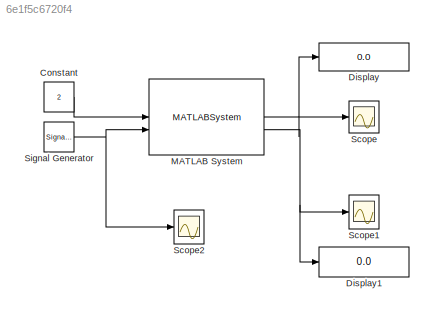
MODEL slx_6e1f5c6720f4
KIND model
CONFIG AbsTol = auto
CONFIG EnableMultiTasking = off
CONFIG FixedStep = .01
CONFIG MaxStep = auto
CONFIG MinStep = auto
CONFIG RelTol = 1e-3
CONFIG SampleTimeConstraint = Unconstrained
CONFIG SolverName = FixedStepAuto
CONFIG StartTime = 0.0
CONFIG StopTime = inf
BLOCK [Constant] Constant
  Value = 2
BLOCK [Display] Display
  Decimation = 1
BLOCK [Display] Display1
  Decimation = 1
BLOCK [MATLABSystem] MATLAB System
  BaudRate = 115200
  COMPort = /dev/ttyACM0
  MaskType = ArduinoSerial
  SimulateUsing = Interpreted execution
  System = ArduinoSerial
BLOCK [Scope] Scope
  ActiveDisplayYMaximum = 3
  ActiveDisplayYMinimum = 1
  Floating = off
  GraphicalSettings = {"Style":{"BackgroundColor":[0.12941176470588237,0.12941176470588237,0.12941176470588237],"AxesColor":[0.07058823529411765,0.07058823529411765,0.07058823529411765],"LabelsColor":[0.8509803921568627,0.8509803921568627,0.8509803921568627],"PreserveColors":false,"Visible":[true],"LineStyle":["-"],"LineWidth":[1.5],"BarWidth":[0.9],"LineColor":["auto"],"LineFaceAlpha":[1],"LineEdgeAlpha":[1],"Marker":...<+1913ch>
  MultipleDisplayCache = [{"MaxYLimMag":3,"MaxYLimReal":3,"MinYLimMag":1,"MinYLimReal":1,"PlotAsMagnitudePhase":false,"ShowGrid":true,"ShowLegend":false,"Title":"%<SignalLabel>","YLabel":""}]
  NumInputPorts = 1
  ScopeFrameLocation = window
  WasSavedAsWebScope = on
  WindowPosition = [994.000000,38.000000,927.000000,1131.000000,]
BLOCK [Scope] Scope1
  ActiveDisplayYMaximum = 14.706273819701902
  ActiveDisplayYMinimum = -6.0034594760493682
  DataLoggingVariableName = ScopeData1
  Floating = off
  GraphicalSettings = {"Style":{"BackgroundColor":[0.12941176470588237,0.12941176470588237,0.12941176470588237],"AxesColor":[0.07058823529411765,0.07058823529411765,0.07058823529411765],"LabelsColor":[0.8509803921568627,0.8509803921568627,0.8509803921568627],"PreserveColors":false,"Visible":[true],"LineStyle":["-"],"LineWidth":[1.5],"BarWidth":[0.9],"LineColor":["auto"],"LineFaceAlpha":[1],"LineEdgeAlpha":[1],"Marker":...<+2252ch>
  MultipleDisplayCache = [{"MaxYLimMag":11.25,"MaxYLimReal":14.706273819701902,"MinYLimMag":0,"MinYLimReal":-6.0034594760493682,"PlotAsMagnitudePhase":false,"ShowGrid":true,"ShowLegend":false,"Title":"%<SignalLabel>","YLabel":""}]
  NumInputPorts = 1
  ScopeFrameLocation = window
  WasSavedAsWebScope = on
  WindowPosition = [67.000000,38.000000,1854.000000,1131.000000,]
BLOCK [Scope] Scope2
  ActiveDisplayYMaximum = 1.0032543199733903
  ActiveDisplayYMinimum = -0.98168540283123717
  DataLoggingVariableName = ScopeData2
  Floating = off
  GraphicalSettings = {"Style":{"BackgroundColor":[0.12941176470588237,0.12941176470588237,0.12941176470588237],"AxesColor":[0.07058823529411765,0.07058823529411765,0.07058823529411765],"LabelsColor":[0.8509803921568627,0.8509803921568627,0.8509803921568627],"PreserveColors":false,"Visible":[true],"LineStyle":["-"],"LineWidth":[1.5],"BarWidth":[0.9],"LineColor":["auto"],"LineFaceAlpha":[1],"LineEdgeAlpha":[1],"Marker":...<+2313ch>
  MultipleDisplayCache = [{"MaxYLimMag":1.0256773981309382,"MaxYLimReal":1.0032543199733903,"MinYLimMag":0,"MinYLimReal":-0.98168540283123717,"PlotAsMagnitudePhase":false,"ShowGrid":true,"ShowLegend":false,"Title":"%<SignalLabel>","YLabel":""}]
  NumInputPorts = 1
  ScopeFrameLocation = window
  WasSavedAsWebScope = on
  WindowPosition = [994.000000,38.000000,927.000000,547.000000,]
BLOCK [SignalGenerator] Signal Generator
  Amplitude = 1000
LINE Constant:1 -> MATLAB System:1
NET MATLAB System:1 -> Display:1, Scope:1
NET MATLAB System:2 -> Display1:1, Scope1:1
NET Signal Generator:1 -> MATLAB System:2, Scope2:1
note: NET lines group one-source signal fan-out (src -> all destinations, sorted); 1:1 wires keep LINE
